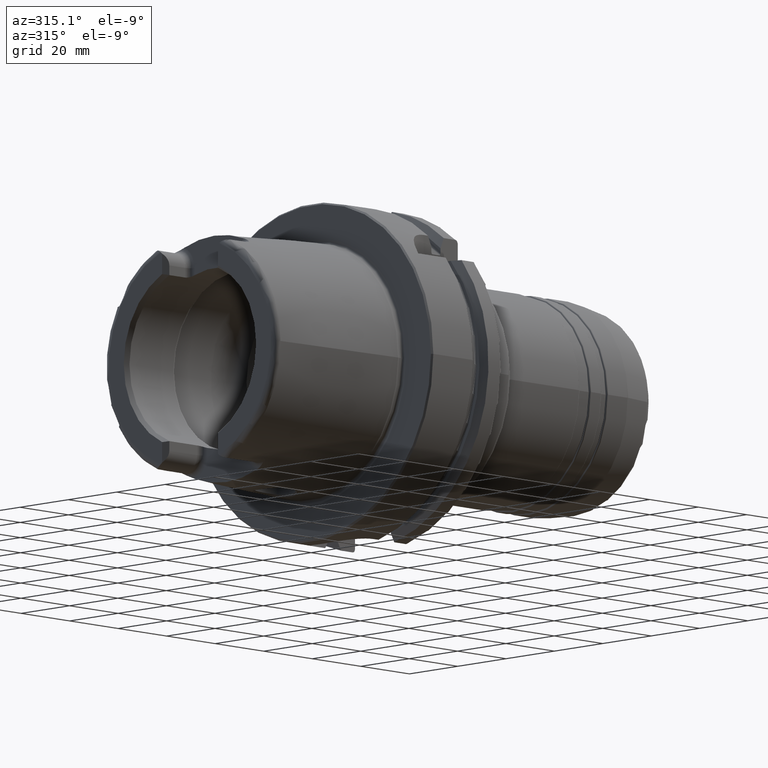
[diagram: clean part render]
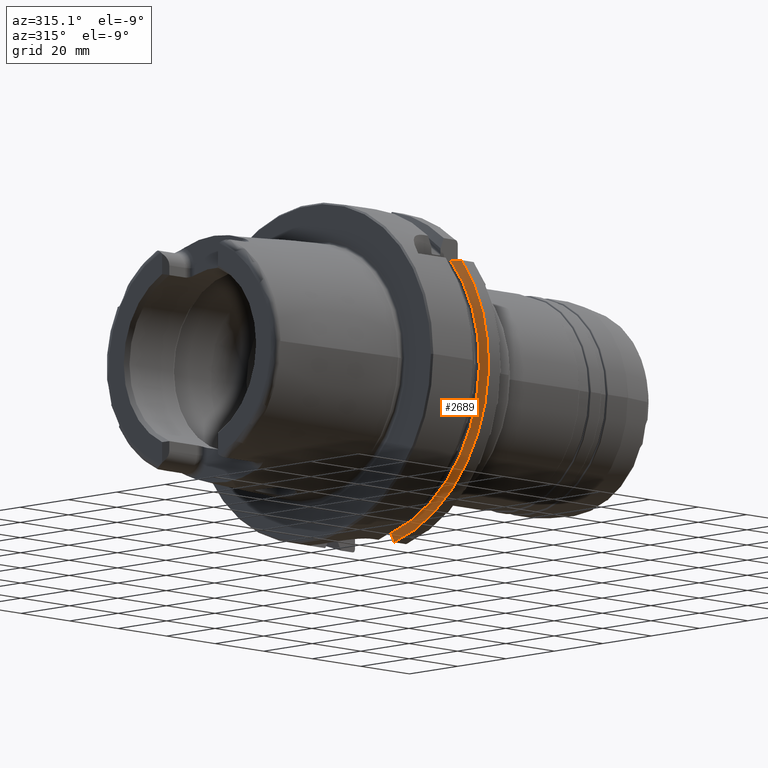
[diagram: same view with one face highlighted and labeled with its STEP entity id]
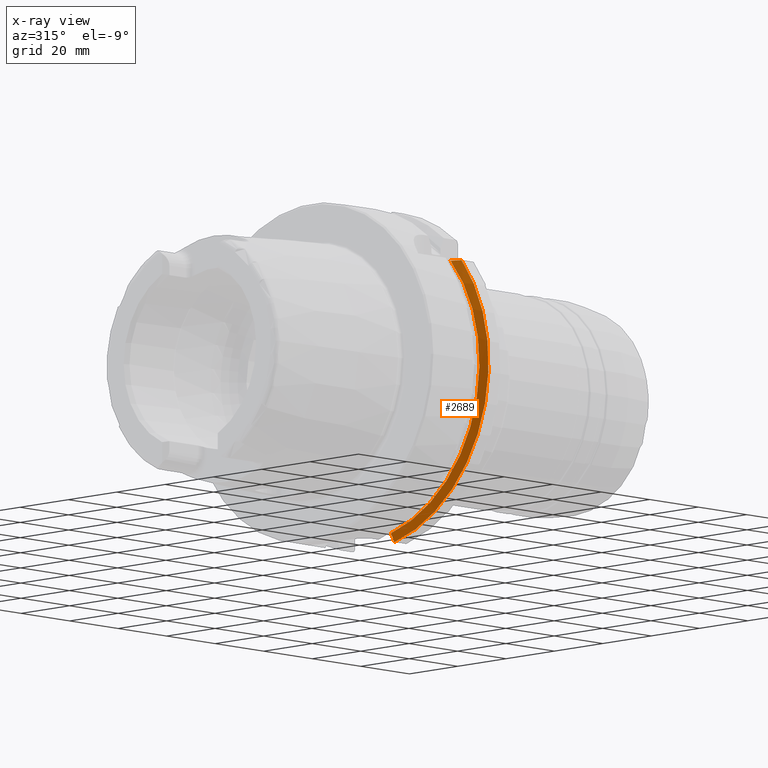
[diagram: x-ray of the same camera — body ghosted, the highlighted face saturated]
A machine part, auxiliary view. The second image highlights one B-rep face of the part: STEP entity #2689.
The next image is the same camera in x-ray: the body ghosted, the highlighted face saturated — about 0% of this face is hidden behind the body in this view.
In plain terms, the highlighted conical surface has half-angle 60 deg.
Its self-contained STEP definition (entity closure, byte-faithful):
#20=(
BOUNDED_CURVE()
B_SPLINE_CURVE(2,(#5147,#5148,#5149),.UNSPECIFIED.,.F.,.F.)
B_SPLINE_CURVE_WITH_KNOTS((3,3),(0.,0.343884390880419),.UNSPECIFIED.)
CURVE()
GEOMETRIC_REPRESENTATION_ITEM()
RATIONAL_B_SPLINE_CURVE((1.,1.00052016257005,1.))
REPRESENTATION_ITEM('')
);
#25=(
BOUNDED_CURVE()
B_SPLINE_CURVE(2,(#5358,#5359,#5360),.UNSPECIFIED.,.F.,.F.)
B_SPLINE_CURVE_WITH_KNOTS((3,3),(0.,0.28292349080556),.UNSPECIFIED.)
CURVE()
GEOMETRIC_REPRESENTATION_ITEM()
RATIONAL_B_SPLINE_CURVE((1.,1.0003193410929,1.))
REPRESENTATION_ITEM('')
);
#430=CONICAL_SURFACE('',#3083,48.7987976320958,1.0471975511966);
#565=FACE_OUTER_BOUND('',#712,.T.);
#712=EDGE_LOOP('',(#2503,#2504,#2505,#2506));
#877=CIRCLE('',#2959,50.);
#946=CIRCLE('',#3082,47.5975952641917);
#1149=VERTEX_POINT('',#5144);
#1150=VERTEX_POINT('',#5146);
#1183=VERTEX_POINT('',#5355);
#1184=VERTEX_POINT('',#5357);
#1501=EDGE_CURVE('',#1150,#1149,#20,.T.);
#1549=EDGE_CURVE('',#1184,#1183,#25,.T.);
#1568=EDGE_CURVE('',#1150,#1183,#877,.T.);
#1665=EDGE_CURVE('',#1149,#1184,#946,.T.);
#2503=ORIENTED_EDGE('',*,*,#1501,.T.);
#2504=ORIENTED_EDGE('',*,*,#1665,.T.);
#2505=ORIENTED_EDGE('',*,*,#1549,.T.);
#2506=ORIENTED_EDGE('',*,*,#1568,.F.);
#2689=ADVANCED_FACE('',(#565),#430,.T.);
#2959=AXIS2_PLACEMENT_3D('',#5426,#3677,#3678);
#3082=AXIS2_PLACEMENT_3D('',#5683,#3943,#3944);
#3083=AXIS2_PLACEMENT_3D('',#5684,#3945,#3946);
#3677=DIRECTION('center_axis',(1.,0.,0.));
#3678=DIRECTION('ref_axis',(0.,0.,-1.));
#3943=DIRECTION('center_axis',(1.,0.,0.));
#3944=DIRECTION('ref_axis',(0.,0.,-1.));
#3945=DIRECTION('center_axis',(1.,0.,0.));
#3946=DIRECTION('ref_axis',(0.,-0.951449961441176,-0.307803461438603));
#5144=CARTESIAN_POINT('',(21.875,-35.6830642593065,31.5));
#5146=CARTESIAN_POINT('',(23.2620290209214,-38.8297566307078,31.5));
#5147=CARTESIAN_POINT('Ctrl Pts',(23.2620290209214,-38.8297566307078,31.5));
#5148=CARTESIAN_POINT('Ctrl Pts',(22.5392272442767,-37.2176818849707,31.5));
#5149=CARTESIAN_POINT('Ctrl Pts',(21.875,-35.6830642593065,31.5));
#5355=CARTESIAN_POINT('',(23.2620290209214,-11.,-48.7749935930288));
#5357=CARTESIAN_POINT('',(21.875,-11.,-46.3090819919138));
#5358=CARTESIAN_POINT('Ctrl Pts',(21.875,-11.,-46.3090819919138));
#5359=CARTESIAN_POINT('Ctrl Pts',(22.5505288964237,-11.,-47.5116880808802));
#5360=CARTESIAN_POINT('Ctrl Pts',(23.2620290209214,-11.,-48.7749935930288));
#5426=CARTESIAN_POINT('Origin',(23.2620290209214,0.,0.));
#5683=CARTESIAN_POINT('Origin',(21.875,0.,0.));
#5684=CARTESIAN_POINT('Origin',(22.5685145104607,0.,0.));